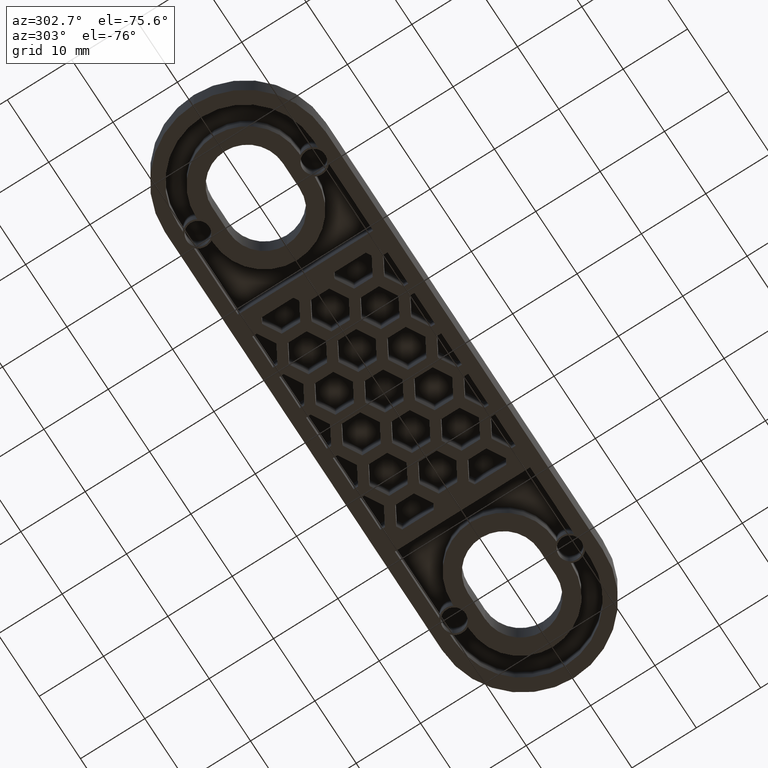
[diagram: clean part render]
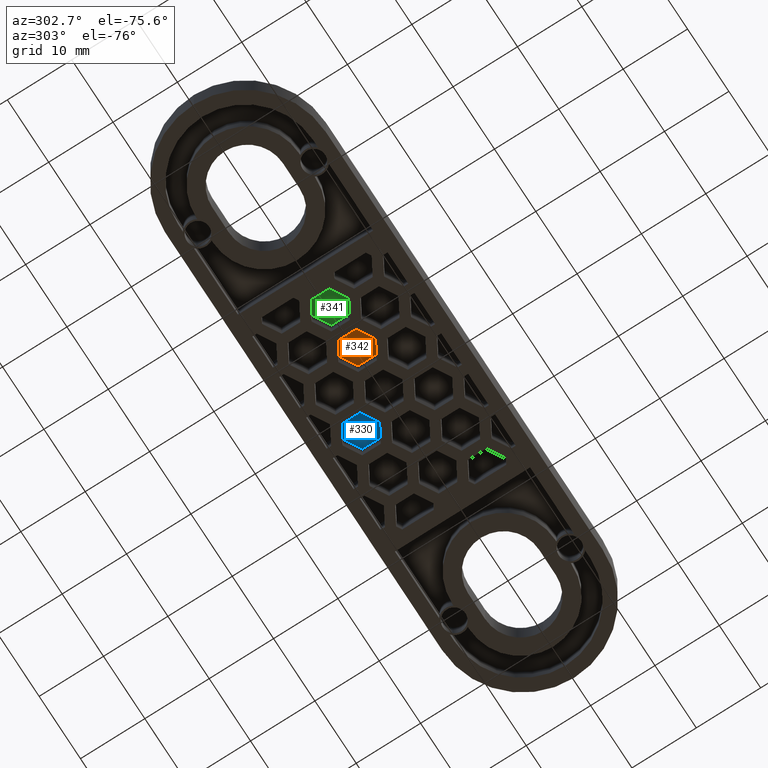
[diagram: same view with three faces highlighted in distinct colors, each labeled with its STEP entity id]
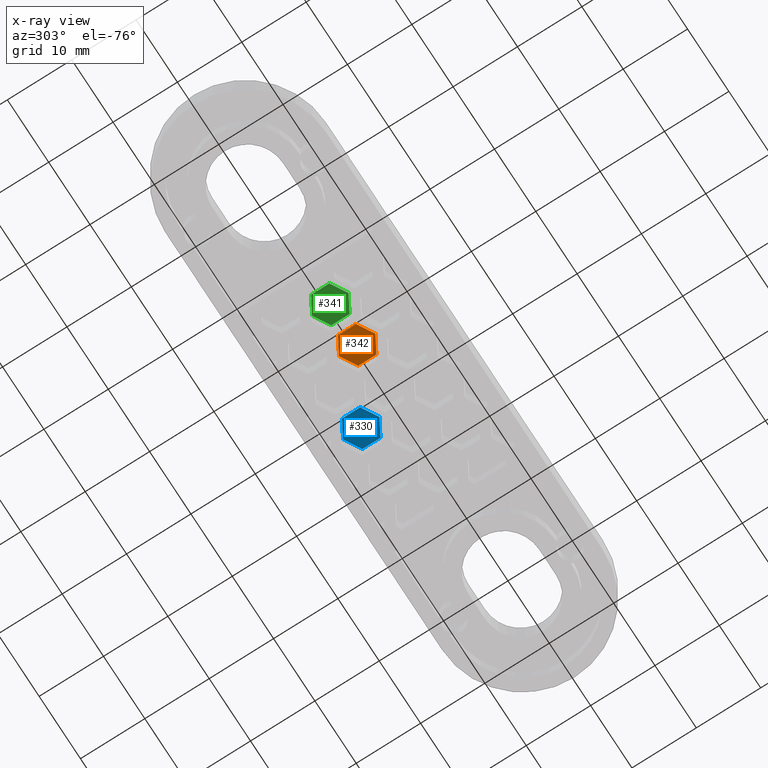
[diagram: x-ray of the same camera — body ghosted, the three highlighted faces saturated]
A machine part, auxiliary view with three faces highlighted in distinct colors.
The next image is the same camera in x-ray (body ghosted, the three faces saturated) — at least one of them is partly hidden behind the body in this view.
Their STEP definitions:

[orange] entity #342 — the highlighted planar face has unit normal (0, -0, -1).
#342 = ADVANCED_FACE( '', ( #947 ), #948, .T. );
#947 = FACE_OUTER_BOUND( '', #1571, .T. );
#948 = PLANE( '', #1572 );
#1571 = EDGE_LOOP( '', ( #3762, #3763, #3764, #3765, #3766, #3767 ) );
#1572 = AXIS2_PLACEMENT_3D( '', #3768, #3769, #3770 );
#3762 = ORIENTED_EDGE( '', *, *, #4516, .T. );
#3763 = ORIENTED_EDGE( '', *, *, #4525, .T. );
#3764 = ORIENTED_EDGE( '', *, *, #4524, .T. );
#3765 = ORIENTED_EDGE( '', *, *, #4522, .T. );
#3766 = ORIENTED_EDGE( '', *, *, #4520, .T. );
#3767 = ORIENTED_EDGE( '', *, *, #4518, .T. );
#3768 = CARTESIAN_POINT( '', ( 33.5000000000000, -1.02246499027875E-014, 2.99999999999998 ) );
#3769 = DIRECTION( '', ( 0.000000000000000, -6.12303176911189E-017, -1.00000000000000 ) );
#3770 = DIRECTION( '', ( 0.000000000000000, -1.00000000000000, 6.12303176911189E-017 ) );
#4516 = EDGE_CURVE( '', #5677, #5679, #5681, .T. );
#4518 = EDGE_CURVE( '', #5682, #5677, #5684, .T. );
#4520 = EDGE_CURVE( '', #5685, #5682, #5687, .T. );
#4522 = EDGE_CURVE( '', #5688, #5685, #5690, .T. );
#4524 = EDGE_CURVE( '', #5691, #5688, #5693, .T. );
#4525 = EDGE_CURVE( '', #5679, #5691, #5694, .T. );
#5677 = VERTEX_POINT( '', #7419 );
#5679 = VERTEX_POINT( '', #7422 );
#5681 = LINE( '', #7425, #7426 );
#5682 = VERTEX_POINT( '', #7427 );
#5684 = LINE( '', #7430, #7431 );
#5685 = VERTEX_POINT( '', #7432 );
#5687 = LINE( '', #7435, #7436 );
#5688 = VERTEX_POINT( '', #7437 );
#5690 = LINE( '', #7440, #7441 );
#5691 = VERTEX_POINT( '', #7442 );
#5693 = LINE( '', #7445, #7446 );
#5694 = LINE( '', #7447, #7448 );
#7419 = CARTESIAN_POINT( '', ( -6.50000000000002, 2.82628522733796, 2.99999999999999 ) );
#7422 = CARTESIAN_POINT( '', ( -4.05236519478467, 1.41314261366898, 2.99999999999998 ) );
#7425 = CARTESIAN_POINT( '', ( -19.1978159672599, 10.1573726941558, 2.99999999999999 ) );
#7426 = VECTOR( '', #8420, 1000.00000000000 );
#7427 = CARTESIAN_POINT( '', ( -8.94763480521536, 1.41314261366898, 2.99999999999999 ) );
#7430 = CARTESIAN_POINT( '', ( -12.5521840327394, -0.667944853149260, 2.99999999999999 ) );
#7431 = VECTOR( '', #8422, 1000.00000000000 );
#7432 = CARTESIAN_POINT( '', ( -8.94763480521536, -1.41314261366898, 2.99999999999999 ) );
#7435 = CARTESIAN_POINT( '', ( -8.94763480521536, 10.4999999999991, 2.99999999999999 ) );
#7436 = VECTOR( '', #8424, 1000.00000000000 );
#7437 = CARTESIAN_POINT( '', ( -6.50000000000002, -2.82628522733796, 2.99999999999999 ) );
#7440 = CARTESIAN_POINT( '', ( -21.6454507724752, 5.91794485314882, 2.99999999999999 ) );
#7441 = VECTOR( '', #8426, 1000.00000000000 );
#7442 = CARTESIAN_POINT( '', ( -4.05236519478467, -1.41314261366898, 2.99999999999999 ) );
#7445 = CARTESIAN_POINT( '', ( -10.1045492275240, -4.90737269415619, 2.99999999999999 ) );
#7446 = VECTOR( '', #8428, 1000.00000000000 );
#7447 = CARTESIAN_POINT( '', ( -4.05236519478467, 10.4999999999991, 2.99999999999999 ) );
#7448 = VECTOR( '', #8429, 1000.00000000000 );
#8420 = DIRECTION( '', ( 0.866025403784439, -0.500000000000000, 3.06151588455594E-017 ) );
#8422 = DIRECTION( '', ( 0.866025403784438, 0.500000000000000, -3.06151588455594E-017 ) );
#8424 = DIRECTION( '', ( 1.11022302462516E-016, 1.00000000000000, -6.12303176911189E-017 ) );
#8426 = DIRECTION( '', ( -0.866025403784439, 0.500000000000000, -3.06151588455594E-017 ) );
#8428 = DIRECTION( '', ( -0.866025403784439, -0.500000000000000, 3.06151588455594E-017 ) );
#8429 = DIRECTION( '', ( 4.99600361081321E-016, -1.00000000000000, 6.12303176911189E-017 ) );

[blue] entity #330 — the highlighted planar face has unit normal (0, -0, -1).
#330 = ADVANCED_FACE( '', ( #923 ), #924, .T. );
#923 = FACE_OUTER_BOUND( '', #1547, .T. );
#924 = PLANE( '', #1548 );
#1547 = EDGE_LOOP( '', ( #3655, #3656, #3657, #3658, #3659, #3660 ) );
#1548 = AXIS2_PLACEMENT_3D( '', #3661, #3662, #3663 );
#3655 = ORIENTED_EDGE( '', *, *, #4393, .F. );
#3656 = ORIENTED_EDGE( '', *, *, #4388, .F. );
#3657 = ORIENTED_EDGE( '', *, *, #4391, .F. );
#3658 = ORIENTED_EDGE( '', *, *, #4394, .F. );
#3659 = ORIENTED_EDGE( '', *, *, #4396, .F. );
#3660 = ORIENTED_EDGE( '', *, *, #4385, .F. );
#3661 = CARTESIAN_POINT( '', ( 33.5000000000000, -1.02246499027875E-014, 2.99999999999998 ) );
#3662 = DIRECTION( '', ( 0.000000000000000, -6.12303176911189E-017, -1.00000000000000 ) );
#3663 = DIRECTION( '', ( 0.000000000000000, -1.00000000000000, 6.12303176911189E-017 ) );
#4385 = EDGE_CURVE( '', #5482, #5483, #5484, .F. );
#4388 = EDGE_CURVE( '', #5487, #5488, #5489, .F. );
#4391 = EDGE_CURVE( '', #5492, #5487, #5493, .F. );
#4393 = EDGE_CURVE( '', #5488, #5482, #5495, .F. );
#4394 = EDGE_CURVE( '', #5496, #5492, #5497, .F. );
#4396 = EDGE_CURVE( '', #5483, #5496, #5499, .F. );
#5482 = VERTEX_POINT( '', #7095 );
#5483 = VERTEX_POINT( '', #7096 );
#5484 = LINE( '', #7097, #7098 );
#5487 = VERTEX_POINT( '', #7103 );
#5488 = VERTEX_POINT( '', #7104 );
#5489 = LINE( '', #7105, #7106 );
#5492 = VERTEX_POINT( '', #7111 );
#5493 = LINE( '', #7112, #7113 );
#5495 = LINE( '', #7116, #7117 );
#5496 = VERTEX_POINT( '', #7118 );
#5497 = LINE( '', #7119, #7120 );
#5499 = LINE( '', #7123, #7124 );
#7095 = CARTESIAN_POINT( '', ( 5.69763480521534, 7.04230773826783, 2.99999999999997 ) );
#7096 = CARTESIAN_POINT( '', ( 3.24999999999999, 8.45545035193681, 2.99999999999999 ) );
#7097 = CARTESIAN_POINT( '', ( -14.3228159672599, 18.6011203810540, 2.99999999999999 ) );
#7098 = VECTOR( '', #8289, 1000.00000000000 );
#7103 = CARTESIAN_POINT( '', ( 3.24999999999999, 2.80287989726090, 2.99999999999998 ) );
#7104 = CARTESIAN_POINT( '', ( 5.69763480521534, 4.21602251092987, 2.99999999999997 ) );
#7105 = CARTESIAN_POINT( '', ( -10.1045492275240, -4.90737269415620, 2.99999999999999 ) );
#7106 = VECTOR( '', #8292, 1000.00000000000 );
#7111 = CARTESIAN_POINT( '', ( 0.802365194784638, 4.21602251092987, 2.99999999999997 ) );
#7112 = CARTESIAN_POINT( '', ( -16.7704507724752, 14.3616925400471, 2.99999999999999 ) );
#7113 = VECTOR( '', #8295, 1000.00000000000 );
#7116 = CARTESIAN_POINT( '', ( 5.69763480521534, 10.4999999999991, 2.99999999999999 ) );
#7117 = VECTOR( '', #8297, 1000.00000000000 );
#7118 = CARTESIAN_POINT( '', ( 0.802365194784625, 7.04230773826783, 2.99999999999997 ) );
#7119 = CARTESIAN_POINT( '', ( 0.802365194784632, 10.4999999999991, 2.99999999999999 ) );
#7120 = VECTOR( '', #8298, 1000.00000000000 );
#7123 = CARTESIAN_POINT( '', ( -12.5521840327394, -0.667944853149266, 2.99999999999999 ) );
#7124 = VECTOR( '', #8300, 1000.00000000000 );
#8289 = DIRECTION( '', ( 0.866025403784439, -0.500000000000000, 3.06151588455594E-017 ) );
#8292 = DIRECTION( '', ( -0.866025403784439, -0.500000000000000, 3.06151588455594E-017 ) );
#8295 = DIRECTION( '', ( -0.866025403784439, 0.500000000000000, -3.06151588455594E-017 ) );
#8297 = DIRECTION( '', ( -4.44089209850063E-016, -1.00000000000000, 6.12303176911189E-017 ) );
#8298 = DIRECTION( '', ( -2.77555756156289E-016, 1.00000000000000, -6.12303176911189E-017 ) );
#8300 = DIRECTION( '', ( 0.866025403784438, 0.500000000000000, -3.06151588455595E-017 ) );

[green] entity #341 — the highlighted planar face has unit normal (0, -0, -1).
#341 = ADVANCED_FACE( '', ( #945 ), #946, .T. );
#945 = FACE_OUTER_BOUND( '', #1569, .T. );
#946 = PLANE( '', #1570 );
#1569 = EDGE_LOOP( '', ( #3753, #3754, #3755, #3756, #3757, #3758 ) );
#1570 = AXIS2_PLACEMENT_3D( '', #3759, #3760, #3761 );
#3753 = ORIENTED_EDGE( '', *, *, #4504, .T. );
#3754 = ORIENTED_EDGE( '', *, *, #4513, .T. );
#3755 = ORIENTED_EDGE( '', *, *, #4512, .T. );
#3756 = ORIENTED_EDGE( '', *, *, #4510, .T. );
#3757 = ORIENTED_EDGE( '', *, *, #4508, .T. );
#3758 = ORIENTED_EDGE( '', *, *, #4506, .T. );
#3759 = CARTESIAN_POINT( '', ( 33.5000000000000, -1.02246499027875E-014, 2.99999999999998 ) );
#3760 = DIRECTION( '', ( 0.000000000000000, -6.12303176911189E-017, -1.00000000000000 ) );
#3761 = DIRECTION( '', ( 0.000000000000000, -1.00000000000000, 6.12303176911189E-017 ) );
#4504 = EDGE_CURVE( '', #5659, #5661, #5663, .T. );
#4506 = EDGE_CURVE( '', #5664, #5659, #5666, .T. );
#4508 = EDGE_CURVE( '', #5667, #5664, #5669, .T. );
#4510 = EDGE_CURVE( '', #5670, #5667, #5672, .T. );
#4512 = EDGE_CURVE( '', #5673, #5670, #5675, .T. );
#4513 = EDGE_CURVE( '', #5661, #5673, #5676, .T. );
#5659 = VERTEX_POINT( '', #7389 );
#5661 = VERTEX_POINT( '', #7392 );
#5663 = LINE( '', #7395, #7396 );
#5664 = VERTEX_POINT( '', #7397 );
#5666 = LINE( '', #7400, #7401 );
#5667 = VERTEX_POINT( '', #7402 );
#5669 = LINE( '', #7405, #7406 );
#5670 = VERTEX_POINT( '', #7407 );
#5672 = LINE( '', #7410, #7411 );
#5673 = VERTEX_POINT( '', #7412 );
#5675 = LINE( '', #7415, #7416 );
#5676 = LINE( '', #7417, #7418 );
#7389 = CARTESIAN_POINT( '', ( -13.0000000000000, 2.82628522733796, 2.99999999999999 ) );
#7392 = CARTESIAN_POINT( '', ( -10.5523651947847, 1.41314261366898, 2.99999999999998 ) );
#7395 = CARTESIAN_POINT( '', ( -20.8228159672599, 7.34279013185633, 2.99999999999999 ) );
#7396 = VECTOR( '', #8408, 1000.00000000000 );
#7397 = CARTESIAN_POINT( '', ( -15.4476348052154, 1.41314261366898, 2.99999999999999 ) );
#7400 = CARTESIAN_POINT( '', ( -14.1771840327394, 2.14663770915017, 2.99999999999999 ) );
#7401 = VECTOR( '', #8410, 1000.00000000000 );
#7402 = CARTESIAN_POINT( '', ( -15.4476348052154, -1.41314261366898, 2.99999999999999 ) );
#7405 = CARTESIAN_POINT( '', ( -15.4476348052154, 10.4999999999991, 2.99999999999999 ) );
#7406 = VECTOR( '', #8412, 1000.00000000000 );
#7407 = CARTESIAN_POINT( '', ( -13.0000000000000, -2.82628522733796, 2.99999999999999 ) );
#7410 = CARTESIAN_POINT( '', ( -23.2704507724752, 3.10336229084940, 2.99999999999999 ) );
#7411 = VECTOR( '', #8414, 1000.00000000000 );
#7412 = CARTESIAN_POINT( '', ( -10.5523651947847, -1.41314261366898, 2.99999999999999 ) );
#7415 = CARTESIAN_POINT( '', ( -11.7295492275240, -2.09279013185677, 2.99999999999999 ) );
#7416 = VECTOR( '', #8416, 1000.00000000000 );
#7417 = CARTESIAN_POINT( '', ( -10.5523651947847, 10.4999999999991, 2.99999999999999 ) );
#7418 = VECTOR( '', #8417, 1000.00000000000 );
#8408 = DIRECTION( '', ( 0.866025403784439, -0.500000000000000, 3.06151588455594E-017 ) );
#8410 = DIRECTION( '', ( 0.866025403784438, 0.500000000000000, -3.06151588455594E-017 ) );
#8412 = DIRECTION( '', ( 1.11022302462516E-016, 1.00000000000000, -6.12303176911189E-017 ) );
#8414 = DIRECTION( '', ( -0.866025403784439, 0.500000000000000, -3.06151588455594E-017 ) );
#8416 = DIRECTION( '', ( -0.866025403784439, -0.500000000000000, 3.06151588455594E-017 ) );
#8417 = DIRECTION( '', ( 4.99600361081321E-016, -1.00000000000000, 6.12303176911189E-017 ) );